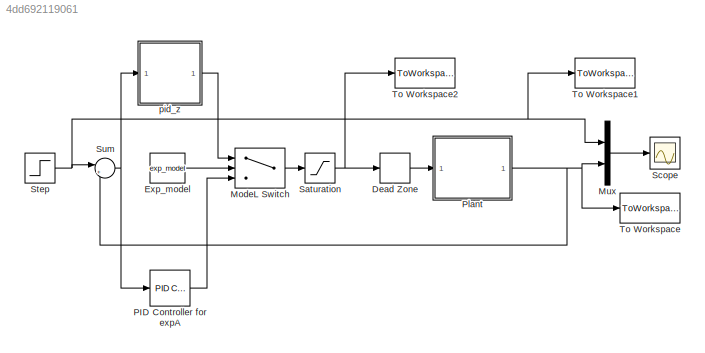
MODEL slx_4dd692119061
KIND model
CONFIG AbsTol = auto
CONFIG EnableMultiTasking = on
CONFIG FixedStep = step_size
CONFIG MaxStep = auto
CONFIG MinStep = auto
CONFIG RelTol = 1e-3
CONFIG SampleTimeConstraint = Unconstrained
CONFIG Solver = ode1
CONFIG SolverName = ode1
CONFIG StartTime = 0.0
CONFIG StopTime = simulink_time
BLOCK [DeadZone] Dead Zone
  LowerValue = -2
  UpperValue = 2
BLOCK [Constant] Exp_model
  Value = exp_model
BLOCK [Switch] ModeL Switch
  Criteria = u2 ~= 0
  InputSameDT = off
  SaturateOnIntegerOverflow = off
BLOCK [Mux] Mux
  DisplayOption = bar
  Inputs = 2
  Ports = [2, 1]
BLOCK [Reference] PID Controller for expA  REF=simulink/Continuous/PID Controller
  Ports = [1, 1]
  SourceBlock = simulink/Continuous/PID Controller
  SourceProductBaseCode = SL
  SourceProductName = Simulink
  SourceType = PID 1dof
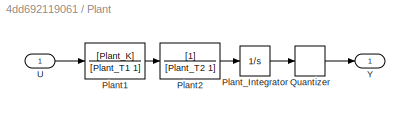
BLOCK [SubSystem] Plant
  Ports = [1, 1]
  RequestExecContextInheritance = off
BLOCK [TransferFcn] Plant/Plant1
  Denominator = [Plant_T1 1]
  Numerator = [Plant_K]
BLOCK [TransferFcn] Plant/Plant2
  Denominator = [Plant_T2 1]
BLOCK [Integrator] Plant/Plant_Integrator
  Ports = [1, 1]
BLOCK [Quantizer] Plant/Quantizer
  QuantizationInterval = 0.01
BLOCK [Inport] Plant/U
  IconDisplay = Signal name
BLOCK [Outport] Plant/Y
  IconDisplay = Signal name
BLOCK [Saturate] Saturation
  InputPortMap = u0
  LowerLimit = -19.2
  Ports = [1, 1]
  UpperLimit = 19.2
BLOCK [Scope] Scope
  Floating = off
  NumInputPorts = 1
  Ports = [1]
  ScopeSpecificationString = C++SS(StrPVP('Location','[188, 156, 909, 629]'),StrPVP('Open','off'),MxPVP('AxesTitles',53,'struct(''axes1'',''%<SignalLabel>'')'),MxPVP('ScopeGraphics',56,'struct(''FigureColor'',''[1 1 1]'',''AxesColor'',''[1 1 1]'',''AxesTickColor'',''[0 0 0]'',''LineColors'',''[1 0 0;0 0 1;0 1 1;1 0 0;0 1 0;0 0 1]'',''LineStyles'',''-|-|-|-|-|-'',''LineWidths'',''[1 1 0.5 0.5 0.5 0.5]'',''MarkerStyles'',''none...<+230ch>
BLOCK [Step] Step
  After = 60
  SampleTime = 0
  Time = simulink_start_time
BLOCK [Sum] Sum
  IconShape = round
  InputSameDT = off
  Inputs = |+-
  OutDataTypeStr = Inherit: Inherit via internal rule
  Ports = [2, 1]
  SaturateOnIntegerOverflow = off
BLOCK [ToWorkspace] To Workspace
  MaxDataPoints = inf
  Ports = [1]
  SampleTime = -1
  VariableName = y
BLOCK [ToWorkspace] To Workspace1
  MaxDataPoints = inf
  Ports = [1]
  SampleTime = -1
  VariableName = r
BLOCK [ToWorkspace] To Workspace2
  MaxDataPoints = inf
  Ports = [1]
  SampleTime = -1
  VariableName = u
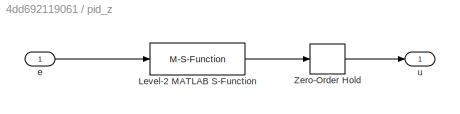
BLOCK [SubSystem] pid_z
  Ports = [1, 1]
  RequestExecContextInheritance = off
BLOCK [M-S-Function] pid_z/Level-2 MATLAB S-Function
  FunctionName = pid_controller
  Parameters = Kp1, Ki1, Kd1
  Ports = [1, 1]
BLOCK [ZeroOrderHold] pid_z/Zero-Order Hold
  SampleTime = -1
BLOCK [Inport] pid_z/e
  IconDisplay = Port number
BLOCK [Outport] pid_z/u
  IconDisplay = Port number
LINE Dead Zone:1 -> Plant:1
LINE Exp_model:1 -> ModeL Switch:2
LINE ModeL Switch:1 -> Saturation:1
LINE Mux:1 -> Scope:1
LINE PID Controller for expA:1 -> ModeL Switch:3
LINE Plant/Plant1:1 -> Plant/Plant2:1
LINE Plant/Plant2:1 -> Plant/Plant_Integrator:1
LINE Plant/Plant_Integrator:1 -> Plant/Quantizer:1
LINE Plant/Quantizer:1 -> Plant/Y:1
LINE Plant/U:1 -> Plant/Plant1:1
NET Plant:1 -> Mux:2, Sum:2, To Workspace:1
NET Saturation:1 -> Dead Zone:1, To Workspace2:1
NET Step:1 -> Mux:1, Sum:1, To Workspace1:1
NET Sum:1 -> PID Controller for expA:1, pid_z:1
LINE pid_z/Level-2 MATLAB S-Function:1 -> pid_z/Zero-Order Hold:1
LINE pid_z/Zero-Order Hold:1 -> pid_z/u:1
LINE pid_z/e:1 -> pid_z/Level-2 MATLAB S-Function:1
LINE pid_z:1 -> ModeL Switch:1
note: NET lines group one-source signal fan-out (src -> all destinations, sorted); 1:1 wires keep LINE
